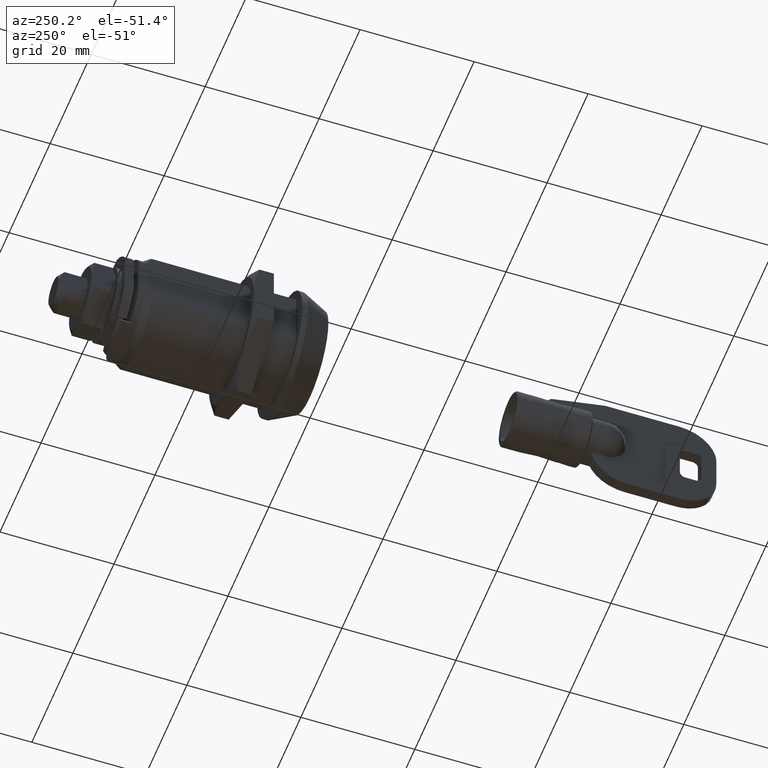
[diagram: clean part render]
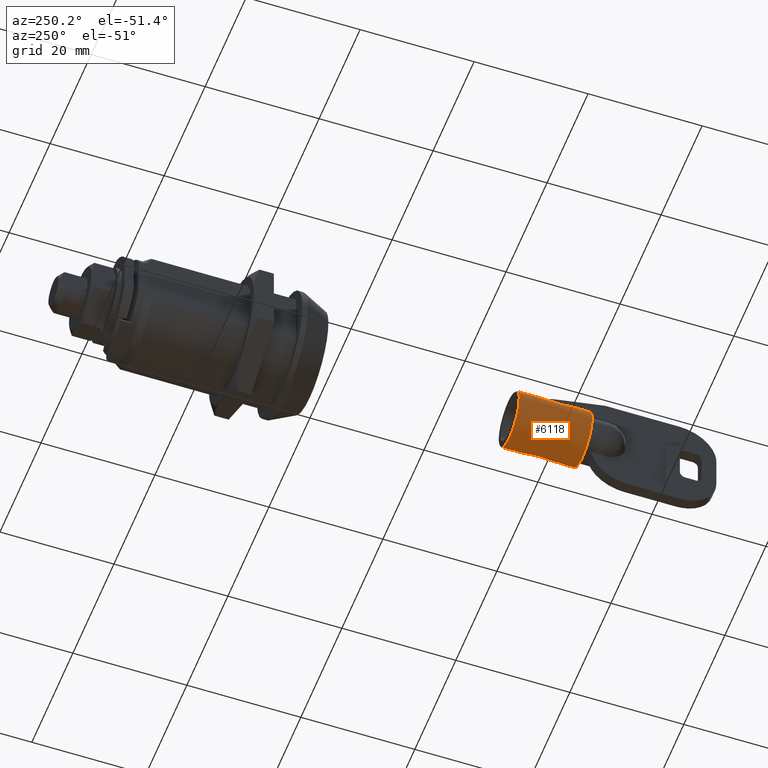
[diagram: same view with one face highlighted and labeled with its STEP entity id]
A machine part, auxiliary view. The second image highlights one B-rep face of the part: STEP entity #6118.
In plain terms, the highlighted face is a freeform B-spline surface patch.
Its self-contained STEP definition (entity closure, byte-faithful):
#5808=CARTESIAN_POINT('',(-34.988703000155340,4.799805231310222,-0.041887266815924));
#5809=VERTEX_POINT('',#5808);
#5815=CARTESIAN_POINT('',(-34.988703000000001,0.0,4.799987999999900));
#5816=VERTEX_POINT('',#5815);
#5817=CARTESIAN_POINT('',(-34.988703000000001,0.0,4.799987999999900));
#5818=CARTESIAN_POINT('',(-34.988703000000008,4.799987999999900,4.799987999999900));
#5819=CARTESIAN_POINT('',(-34.988703000000001,4.799987999999900,0.0));
#5820=CARTESIAN_POINT('',(-34.988703000000008,4.799987999999901,-0.020944032720028));
#5821=CARTESIAN_POINT('',(-34.988703000155340,4.799805231310222,-0.041887266815924));
#5829=(BOUNDED_CURVE()B_SPLINE_CURVE(2,(#5817,#5818,#5819,#5820,#5821),.UNSPECIFIED.,.F.,.U.)B_SPLINE_CURVE_WITH_KNOTS((3,2,3),(0.500000000000000,0.750000000000000,0.751539894418717),.UNSPECIFIED.)CURVE()GEOMETRIC_REPRESENTATION_ITEM()RATIONAL_B_SPLINE_CURVE((1.0,0.707106781186547,1.0,0.998195901468276,0.996414027906630))REPRESENTATION_ITEM(''));
#5830=EDGE_CURVE('',#5816,#5809,#5829,.T.);
#5832=CARTESIAN_POINT('',(-34.988703000000001,-4.121475527590625,2.460350437559359));
#5833=VERTEX_POINT('',#5832);
#5834=CARTESIAN_POINT('',(-34.988703000000008,-4.121475527590624,2.460350437559360));
#5835=CARTESIAN_POINT('',(-34.988703000000008,-2.724808663517809,4.799987999999900));
#5836=CARTESIAN_POINT('',(-34.988703000000001,0.0,4.799987999999900));
#5844=(BOUNDED_CURVE()B_SPLINE_CURVE(2,(#5834,#5835,#5836),.UNSPECIFIED.,.F.,.U.)B_SPLINE_CURVE_WITH_KNOTS((3,3),(0.337506539877124,0.500000000000000),.UNSPECIFIED.)CURVE()GEOMETRIC_REPRESENTATION_ITEM()RATIONAL_B_SPLINE_CURVE((0.866728988675157,0.809627069713902,1.0))REPRESENTATION_ITEM(''));
#5845=EDGE_CURVE('',#5833,#5816,#5844,.T.);
#5847=CARTESIAN_POINT('',(-34.988703000000001,-4.783895171262223,-0.392723554828352));
#5848=VERTEX_POINT('',#5847);
#5864=CARTESIAN_POINT('',(-34.988703000000001,0.0,-4.799987999999900));
#5865=VERTEX_POINT('',#5864);
#5866=CARTESIAN_POINT('',(-34.988703000000001,0.0,-4.799987999999900));
#5867=CARTESIAN_POINT('',(-34.988703000000008,-4.422090303253985,-4.799987999999900));
#5868=CARTESIAN_POINT('',(-34.988703000000001,-4.783895171262223,-0.392723554828352));
#5876=(BOUNDED_CURVE()B_SPLINE_CURVE(2,(#5866,#5867,#5868),.UNSPECIFIED.,.F.,.U.)B_SPLINE_CURVE_WITH_KNOTS((3,3),(0.0,0.235754068977095),.UNSPECIFIED.)CURVE()GEOMETRIC_REPRESENTATION_ITEM()RATIONAL_B_SPLINE_CURVE((1.0,0.723796927555719,0.968521840653155))REPRESENTATION_ITEM(''));
#5877=EDGE_CURVE('',#5865,#5848,#5876,.T.);
#5879=CARTESIAN_POINT('',(-34.988703000000228,3.475926198664106,-3.310260089718891));
#5880=VERTEX_POINT('',#5879);
#5881=CARTESIAN_POINT('',(-34.988703000000228,3.475926198664106,-3.310260089718891));
#5882=CARTESIAN_POINT('',(-34.988703000000001,2.057200206174339,-4.799987999999900));
#5883=CARTESIAN_POINT('',(-34.988703000000001,0.0,-4.799987999999900));
#5891=(BOUNDED_CURVE()B_SPLINE_CURVE(2,(#5881,#5882,#5883),.UNSPECIFIED.,.F.,.U.)B_SPLINE_CURVE_WITH_KNOTS((3,3),(0.871317023851839,1.0),.UNSPECIFIED.)CURVE()GEOMETRIC_REPRESENTATION_ITEM()RATIONAL_B_SPLINE_CURVE((0.853680523245618,0.849238515637882,1.0))REPRESENTATION_ITEM(''));
#5892=EDGE_CURVE('',#5880,#5865,#5891,.T.);
#5930=CARTESIAN_POINT('',(-34.988703000155340,4.799805231310222,-0.041887266815924));
#5931=CARTESIAN_POINT('',(-34.988703000000008,4.783262499021987,-1.937496508113067));
#5932=CARTESIAN_POINT('',(-34.988703000000228,3.475926198664106,-3.310260089718891));
#5940=(BOUNDED_CURVE()B_SPLINE_CURVE(2,(#5930,#5931,#5932),.UNSPECIFIED.,.F.,.U.)B_SPLINE_CURVE_WITH_KNOTS((3,3),(0.751539894418717,0.871317023851840),.UNSPECIFIED.)CURVE()GEOMETRIC_REPRESENTATION_ITEM()RATIONAL_B_SPLINE_CURVE((0.996414027906631,0.857815109933775,0.853680523245618))REPRESENTATION_ITEM(''));
#5941=EDGE_CURVE('',#5809,#5880,#5940,.T.);
#5947=CARTESIAN_POINT('',(-34.668703075000003,-4.121473471709836,2.460353881484350));
#5948=CARTESIAN_POINT('',(-34.668703074999996,-2.855083502945412,4.581753042955024));
#5949=CARTESIAN_POINT('',(-34.668703075000003,-0.392723554596796,4.783895171281232));
#5950=CARTESIAN_POINT('',(-34.668703074999996,4.391171616684437,5.176618725878029));
#5951=CARTESIAN_POINT('',(-34.668703075000003,4.783895171281232,0.392723554596796));
#5952=CARTESIAN_POINT('',(-34.668703074999996,5.176618725878029,-4.391171616684437));
#5953=CARTESIAN_POINT('',(-34.668703075000003,0.392723554596796,-4.783895171281232));
#5954=CARTESIAN_POINT('',(-34.668703074999996,-4.391171616684437,-5.176618725878029));
#5955=CARTESIAN_POINT('',(-34.668703075000003,-4.783895171281232,-0.392723554596796));
#5956=CARTESIAN_POINT('',(-48.116699923124997,-4.121473471709836,2.460353881484350));
#5957=CARTESIAN_POINT('',(-48.116699923124997,-2.855083502945412,4.581753042955024));
#5958=CARTESIAN_POINT('',(-48.116699923125012,-0.392723554596796,4.783895171281232));
#5959=CARTESIAN_POINT('',(-48.116699923125019,4.391171616684437,5.176618725878029));
#5960=CARTESIAN_POINT('',(-48.116699923125012,4.783895171281232,0.392723554596796));
#5961=CARTESIAN_POINT('',(-48.116699923125019,5.176618725878029,-4.391171616684437));
#5962=CARTESIAN_POINT('',(-48.116699923125012,0.392723554596796,-4.783895171281232));
#5963=CARTESIAN_POINT('',(-48.116699923125019,-4.391171616684437,-5.176618725878029));
#5964=CARTESIAN_POINT('',(-48.116699923125012,-4.783895171281232,-0.392723554596796));
#5972=(BOUNDED_SURFACE()B_SPLINE_SURFACE(2,1,((#5947,#5956),(#5948,#5957),(#5949,#5958),(#5950,#5959),(#5951,#5960),(#5952,#5961),(#5953,#5962),(#5954,#5963),(#5955,#5964)),.UNSPECIFIED.,.F.,.F.,.U.)B_SPLINE_SURFACE_WITH_KNOTS((3,2,2,2,3),(2,2),(0.0,4.771728309187359,12.724608824499620,20.677489339811888,28.630369855124162),(0.0,13.447996848125021),.UNSPECIFIED.)GEOMETRIC_REPRESENTATION_ITEM()RATIONAL_B_SPLINE_SURFACE(((0.859411254969543,0.859411254969543),(0.824264068711928,0.824264068711928),(1.0,1.0),(0.707106781186548,0.707106781186548),(1.0,1.0),(0.707106781186548,0.707106781186548),(1.0,1.0),(0.707106781186548,0.707106781186548),(1.0,1.0)))REPRESENTATION_ITEM('')SURFACE());
#5973=CARTESIAN_POINT('',(-47.788700000000013,-0.900000000000000,4.714857876982400));
#5974=VERTEX_POINT('',#5973);
#5975=CARTESIAN_POINT('',(-47.788699999999920,-4.121474327004972,2.460352448731516));
#5976=VERTEX_POINT('',#5975);
#5977=CARTESIAN_POINT('',(-47.788700000000013,-0.900000000000002,4.714857876982406));
#5978=CARTESIAN_POINT('',(-47.788700000000006,-3.016842979744374,4.310782349897956));
#5979=CARTESIAN_POINT('',(-47.788699999999928,-4.121474327004972,2.460352448731516));
#5987=(BOUNDED_CURVE()B_SPLINE_CURVE(2,(#5977,#5978,#5979),.UNSPECIFIED.,.F.,.U.)B_SPLINE_CURVE_WITH_KNOTS((3,3),(0.0,0.142101681417462),.UNSPECIFIED.)CURVE()GEOMETRIC_REPRESENTATION_ITEM()RATIONAL_B_SPLINE_CURVE((1.0,0.852016164108736,0.872262343439507))REPRESENTATION_ITEM(''));
#5988=EDGE_CURVE('',#5974,#5976,#5987,.T.);
#5989=ORIENTED_EDGE('',*,*,#5988,.T.);
#5990=CARTESIAN_POINT('',(-34.988703000000001,-4.121475527590625,2.460350437559359));
#5991=CARTESIAN_POINT('',(-47.788699999999920,-4.121474327004972,2.460352448731516));
#5992=QUASI_UNIFORM_CURVE('',1,(#5990,#5991),.UNSPECIFIED.,.F.,.U.);
#5993=EDGE_CURVE('',#5833,#5976,#5992,.T.);
#5994=ORIENTED_EDGE('',*,*,#5993,.F.);
#5995=ORIENTED_EDGE('',*,*,#5845,.T.);
#5996=ORIENTED_EDGE('',*,*,#5830,.T.);
#5997=ORIENTED_EDGE('',*,*,#5941,.T.);
#5998=ORIENTED_EDGE('',*,*,#5892,.T.);
#5999=ORIENTED_EDGE('',*,*,#5877,.T.);
#6000=CARTESIAN_POINT('',(-47.788700000000013,-4.783895171298537,-0.392723554385997));
#6001=VERTEX_POINT('',#6000);
#6002=CARTESIAN_POINT('',(-34.988703000000001,-4.783895171262223,-0.392723554828352));
#6003=CARTESIAN_POINT('',(-47.788700000000013,-4.783895171298537,-0.392723554385997));
#6004=QUASI_UNIFORM_CURVE('',1,(#6002,#6003),.UNSPECIFIED.,.F.,.U.);
#6005=EDGE_CURVE('',#5848,#6001,#6004,.T.);
#6006=ORIENTED_EDGE('',*,*,#6005,.T.);
#6007=CARTESIAN_POINT('',(-47.788700000000013,0.900000000000000,4.714857876982411));
#6008=VERTEX_POINT('',#6007);
#6009=CARTESIAN_POINT('',(-47.788700000000006,-4.783895171298537,-0.392723554385997));
#6010=CARTESIAN_POINT('',(-47.788700000000006,-4.781460399174957,-0.422382316844788));
#6011=CARTESIAN_POINT('',(-47.788700000000013,-4.778658076874908,-0.452008611047671));
#6012=CARTESIAN_POINT('',(-47.788699999999992,-4.367386943253760,-4.799987999999900));
#6013=CARTESIAN_POINT('',(-47.788700000000013,0.0,-4.799987999999900));
#6014=CARTESIAN_POINT('',(-47.788699999999992,4.367386943253763,-4.799987999999900));
#6015=CARTESIAN_POINT('',(-47.788700000000013,4.778658076874908,-0.452008611047669));
#6016=CARTESIAN_POINT('',(-47.788699999999992,5.189929210496054,3.895970777904562));
#6017=CARTESIAN_POINT('',(-47.788700000000013,0.899999999999999,4.714857876982406));
#6025=(BOUNDED_CURVE()B_SPLINE_CURVE(2,(#6009,#6010,#6011,#6012,#6013,#6014,#6015,#6016,#6017),.UNSPECIFIED.,.F.,.U.)B_SPLINE_CURVE_WITH_KNOTS((3,2,2,2,3),(0.247702463800878,0.250000000000000,0.500000000000000,0.750000000000000,1.0),.UNSPECIFIED.)CURVE()GEOMETRIC_REPRESENTATION_ITEM()RATIONAL_B_SPLINE_CURVE((0.995258696679535,0.997607359628306,1.0,0.739651504445395,1.0,0.739651504445395,1.0,0.739651504445395,1.0))REPRESENTATION_ITEM(''));
#6026=EDGE_CURVE('',#6001,#6008,#6025,.T.);
#6027=ORIENTED_EDGE('',*,*,#6026,.T.);
#6028=CARTESIAN_POINT('',(-41.388702000000002,0.900000000000000,4.714857876982411));
#6029=VERTEX_POINT('',#6028);
#6030=CARTESIAN_POINT('',(-47.788700000000013,0.900000000000000,4.714857876982411));
#6031=CARTESIAN_POINT('',(-41.388702000000002,0.900000000000000,4.714857876982411));
#6032=QUASI_UNIFORM_CURVE('',1,(#6030,#6031),.UNSPECIFIED.,.F.,.U.);
#6033=EDGE_CURVE('',#6008,#6029,#6032,.T.);
#6034=ORIENTED_EDGE('',*,*,#6033,.T.);
#6035=CARTESIAN_POINT('',(-41.388698999723701,-0.900000000000000,4.714857876982400));
#6036=VERTEX_POINT('',#6035);
#6037=CARTESIAN_POINT('',(-41.388698999723701,-0.900000000000000,4.714857876982400));
#6038=CARTESIAN_POINT('',(-41.388700499861862,-1.640181E-015,4.886655208128771));
#6039=CARTESIAN_POINT('',(-41.388702000000002,0.900000000000000,4.714857876982411));
#6047=(BOUNDED_CURVE()B_SPLINE_CURVE(2,(#6037,#6038,#6039),.UNSPECIFIED.,.F.,.U.)CURVE()GEOMETRIC_REPRESENTATION_ITEM()QUASI_UNIFORM_CURVE()RATIONAL_B_SPLINE_CURVE((1.0,0.982264513365972,1.0))REPRESENTATION_ITEM(''));
#6048=EDGE_CURVE('',#6036,#6029,#6047,.T.);
#6049=ORIENTED_EDGE('',*,*,#6048,.F.);
#6050=CARTESIAN_POINT('',(-47.788700000000013,-0.900000000000000,4.714857876982400));
#6051=CARTESIAN_POINT('',(-41.388698999723701,-0.900000000000000,4.714857876982400));
#6052=QUASI_UNIFORM_CURVE('',1,(#6050,#6051),.UNSPECIFIED.,.F.,.U.);
#6053=EDGE_CURVE('',#5974,#6036,#6052,.T.);
#6054=ORIENTED_EDGE('',*,*,#6053,.F.);
#6055=EDGE_LOOP('',(#5989,#5994,#5995,#5996,#5997,#5998,#5999,#6006,#6027,#6034,#6049,#6054));
#6056=FACE_OUTER_BOUND('',#6055,.T.);
#6057=CARTESIAN_POINT('',(-37.888702000000002,-0.824999999999965,4.728557898571510));
#6058=VERTEX_POINT('',#6057);
#6059=CARTESIAN_POINT('',(-36.388694000000001,-0.824999999999965,4.728557898571510));
#6060=VERTEX_POINT('',#6059);
#6061=CARTESIAN_POINT('',(-37.888702000000002,-0.824999999999965,4.728557898571510));
#6062=CARTESIAN_POINT('',(-36.388694000000001,-0.824999999999965,4.728557898571510));
#6063=QUASI_UNIFORM_CURVE('',1,(#6061,#6062),.UNSPECIFIED.,.F.,.U.);
#6064=EDGE_CURVE('',#6058,#6060,#6063,.T.);
#6065=ORIENTED_EDGE('',*,*,#6064,.F.);
#6066=CARTESIAN_POINT('',(-37.888702000000002,0.824999999999965,4.728557898571510));
#6067=VERTEX_POINT('',#6066);
#6068=CARTESIAN_POINT('',(-37.888702000000002,-0.824999999999967,4.728557898571519));
#6069=CARTESIAN_POINT('',(-37.888702000000009,-1.192622E-015,4.872497132181317));
#6070=CARTESIAN_POINT('',(-37.888702000000002,0.824999999999966,4.728557898571519));
#6078=(BOUNDED_CURVE()B_SPLINE_CURVE(2,(#6068,#6069,#6070),.UNSPECIFIED.,.F.,.U.)CURVE()GEOMETRIC_REPRESENTATION_ITEM()QUASI_UNIFORM_CURVE()RATIONAL_B_SPLINE_CURVE((1.0,0.985118691665816,1.0))REPRESENTATION_ITEM(''));
#6079=EDGE_CURVE('',#6058,#6067,#6078,.T.);
#6080=ORIENTED_EDGE('',*,*,#6079,.T.);
#6081=CARTESIAN_POINT('',(-36.388694000000001,0.825000000000000,4.728557898571510));
#6082=VERTEX_POINT('',#6081);
#6083=CARTESIAN_POINT('',(-37.888702000000002,0.824999999999965,4.728557898571510));
#6084=CARTESIAN_POINT('',(-36.388694000000001,0.825000000000000,4.728557898571510));
#6085=QUASI_UNIFORM_CURVE('',1,(#6083,#6084),.UNSPECIFIED.,.F.,.U.);
#6086=EDGE_CURVE('',#6067,#6082,#6085,.T.);
#6087=ORIENTED_EDGE('',*,*,#6086,.T.);
#6088=CARTESIAN_POINT('',(-36.388694000000001,0.0,4.799987999999900));
#6089=VERTEX_POINT('',#6088);
#6090=CARTESIAN_POINT('',(-36.388694000000001,0.825000000000003,4.728557898571512));
#6091=CARTESIAN_POINT('',(-36.388694000000001,0.415592278418223,4.799987999999900));
#6092=CARTESIAN_POINT('',(-36.388694000000001,0.0,4.799987999999900));
#6100=(BOUNDED_CURVE()B_SPLINE_CURVE(2,(#6090,#6091,#6092),.UNSPECIFIED.,.F.,.U.)CURVE()GEOMETRIC_REPRESENTATION_ITEM()QUASI_UNIFORM_CURVE()RATIONAL_B_SPLINE_CURVE((1.0,0.996272726633078,1.0))REPRESENTATION_ITEM(''));
#6101=EDGE_CURVE('',#6082,#6089,#6100,.T.);
#6102=ORIENTED_EDGE('',*,*,#6101,.T.);
#6103=CARTESIAN_POINT('',(-36.388694000000001,0.0,4.799987999999900));
#6104=CARTESIAN_POINT('',(-36.388694000000001,-0.415592278418211,4.799987999999900));
#6105=CARTESIAN_POINT('',(-36.388694000000001,-0.824999999999968,4.728557898571519));
#6113=(BOUNDED_CURVE()B_SPLINE_CURVE(2,(#6103,#6104,#6105),.UNSPECIFIED.,.F.,.U.)CURVE()GEOMETRIC_REPRESENTATION_ITEM()QUASI_UNIFORM_CURVE()RATIONAL_B_SPLINE_CURVE((1.0,0.996272726633078,1.0))REPRESENTATION_ITEM(''));
#6114=EDGE_CURVE('',#6089,#6060,#6113,.T.);
#6115=ORIENTED_EDGE('',*,*,#6114,.T.);
#6116=EDGE_LOOP('',(#6065,#6080,#6087,#6102,#6115));
#6117=FACE_BOUND('',#6116,.T.);
#6118=ADVANCED_FACE('',(#6056,#6117),#5972,.T.);